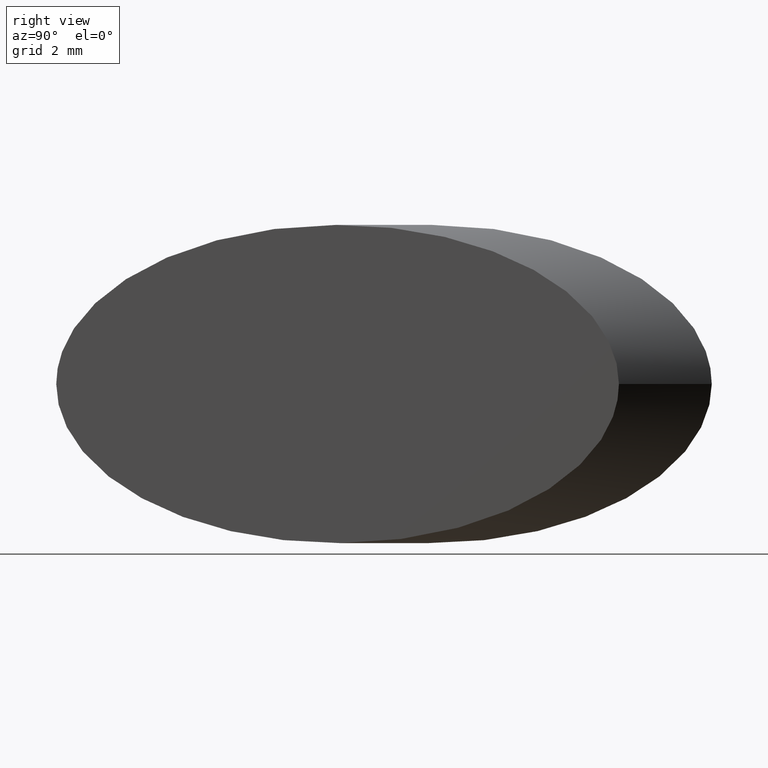
[diagram: clean part render]
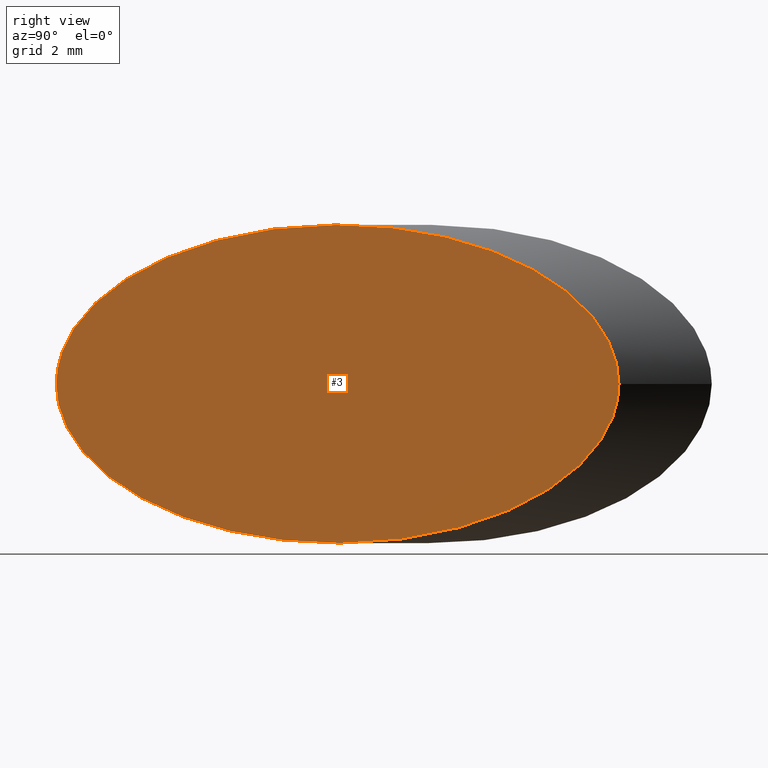
[diagram: same view with one face highlighted and labeled with its STEP entity id]
A machine part, right view. The second image highlights one B-rep face of the part: STEP entity #3.
In plain terms, the highlighted planar face has unit normal (1, 0, 0).
Its self-contained STEP definition (entity closure, byte-faithful):
#3 = ADVANCED_FACE ( 'NONE', ( #53 ), #8, .T. ) ;
#8 = PLANE ( 'NONE',  #92 ) ;
#9 = EDGE_LOOP ( 'NONE', ( #37, #141 ) ) ;
#23 = CARTESIAN_POINT ( 'NONE',  ( 0.9999999999999993300, 7.383920638990180600, 9.999999999999998200 ) ) ;
#24 = CARTESIAN_POINT ( 'NONE',  ( 0.9999999999999950000, 7.383920638990191200, -5.000000000000000000 ) ) ;
#25 = CARTESIAN_POINT ( 'NONE',  ( 1.000000000000004400, -10.30120470850947500, 0.0000000000000000000 ) ) ;
#37 = ORIENTED_EDGE ( 'NONE', *, *, #162, .T. ) ;
#47 = CARTESIAN_POINT ( 'NONE',  ( 1.000000000000002400, -10.30120470850947000, -9.999999999999998200 ) ) ;
#53 = FACE_OUTER_BOUND ( 'NONE', #9, .T. ) ;
#58 = CARTESIAN_POINT ( 'NONE',  ( 1.000000000000000900, 7.383920638990182400, 6.123233995736766300E-016 ) ) ;
#59 = CARTESIAN_POINT ( 'NONE',  ( 1.000000000000004400, -10.30120470850947500, 0.0000000000000000000 ) ) ;
#70 = VERTEX_POINT ( 'NONE', #58 ) ;
#74 = CARTESIAN_POINT ( 'NONE',  ( 1.000000000000004400, -10.30120470850947500, 0.0000000000000000000 ) ) ;
#86 = CARTESIAN_POINT ( 'NONE',  ( 1.000000000000000900, 7.383920638990182400, 6.123233995736766300E-016 ) ) ;
#89 = CARTESIAN_POINT ( 'NONE',  ( 1.000000000000000900, 7.383920638990182400, 6.123233995736766300E-016 ) ) ;
#92 = AXIS2_PLACEMENT_3D ( 'NONE', #24, #137, #102 ) ;
#102 = DIRECTION ( 'NONE',  ( -1.839176400248907000E-016, 1.000000000000000000, 0.0000000000000000000 ) ) ;
#112 = VERTEX_POINT ( 'NONE', #25 ) ;
#115 = CARTESIAN_POINT ( 'NONE',  ( 1.000000000000002400, -10.30120470850946600, 9.999999999999998200 ) ) ;
#130 =( BOUNDED_CURVE ( )  B_SPLINE_CURVE ( 3, ( #89, #23, #115, #74 ),
 .UNSPECIFIED., .F., .F. ) 
 B_SPLINE_CURVE_WITH_KNOTS ( ( 4, 4 ),
 ( 1.224646799147353200E-016, 3.141592653589793100 ),
 .UNSPECIFIED. ) 
 CURVE ( )  GEOMETRIC_REPRESENTATION_ITEM ( )  RATIONAL_B_SPLINE_CURVE ( ( 1.000000000000000000, 0.3333333333333333700, 0.3333333333333333700, 1.000000000000000000 ) ) 
 REPRESENTATION_ITEM ( '' )  );
#134 =( BOUNDED_CURVE ( )  B_SPLINE_CURVE ( 3, ( #59, #47, #170, #86 ),
 .UNSPECIFIED., .F., .T. ) 
 B_SPLINE_CURVE_WITH_KNOTS ( ( 4, 4 ),
 ( 3.141592653589793100, 6.283185307179586200 ),
 .UNSPECIFIED. ) 
 CURVE ( )  GEOMETRIC_REPRESENTATION_ITEM ( )  RATIONAL_B_SPLINE_CURVE ( ( 1.000000000000000000, 0.3333333333333333700, 0.3333333333333333700, 1.000000000000000000 ) ) 
 REPRESENTATION_ITEM ( '' )  );
#137 = DIRECTION ( 'NONE',  ( 1.000000000000000000, 1.839176400248907000E-016, 0.0000000000000000000 ) ) ;
#141 = ORIENTED_EDGE ( 'NONE', *, *, #159, .T. ) ;
#159 = EDGE_CURVE ( 'NONE', #70, #112, #130, .T. ) ;
#162 = EDGE_CURVE ( 'NONE', #112, #70, #134, .T. ) ;
#170 = CARTESIAN_POINT ( 'NONE',  ( 0.9999999999999993300, 7.383920638990183200, -9.999999999999998200 ) ) ;